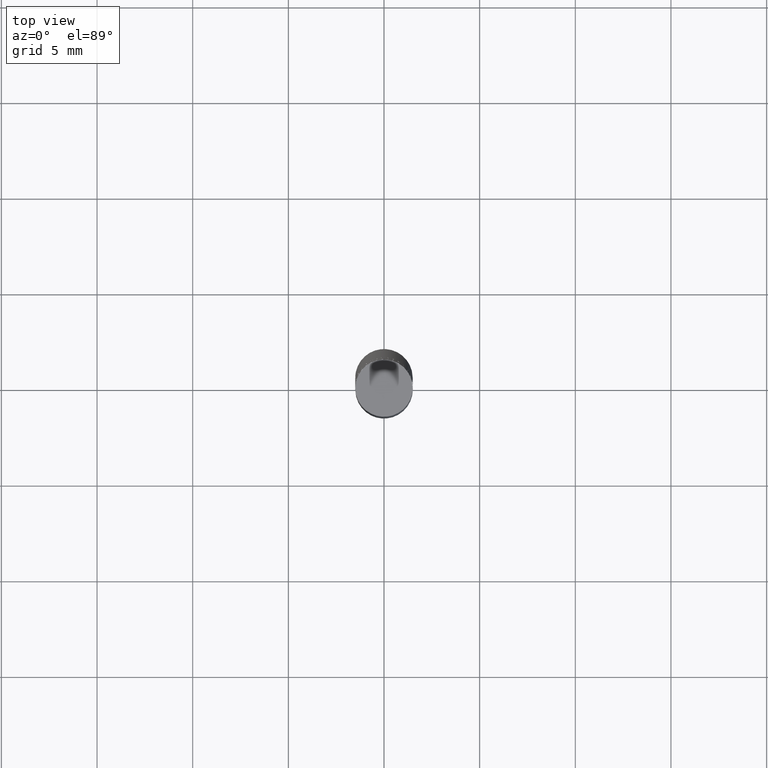
[diagram: clean part render]
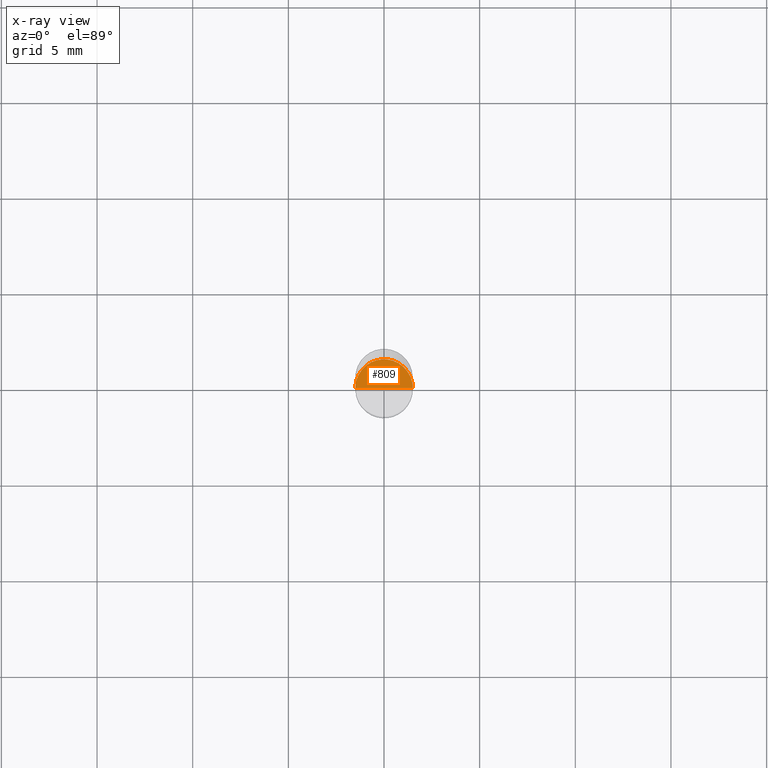
[diagram: x-ray — body ghosted, one internal face saturated and labeled with its STEP entity id]
A machine part, top view, then the same camera in x-ray: the body is ghosted and one INTERNAL B-rep face — a face not visible from any outside direction — is saturated and labeled: STEP entity #809.
In plain terms, the highlighted face is a freeform B-spline surface patch.
Its self-contained STEP definition (entity closure, byte-faithful):
#711=CARTESIAN_POINT('',(1.5,0.0,-5.0));
#712=CARTESIAN_POINT('',(1.5,1.5,-5.0));
#713=CARTESIAN_POINT('',(0.0,1.5,-5.0));
#714=CARTESIAN_POINT('',(-1.5,1.5,-5.0));
#715=CARTESIAN_POINT('',(-1.5,0.0,-5.0));
#716=CARTESIAN_POINT('',(0.0,0.0,-5.0));
#794=(
BOUNDED_SURFACE()
B_SPLINE_SURFACE(1,2,(
(#711,#712,#713,#714,#715),
(#716,#716,#716,#716,#716)
), .UNSPECIFIED.,.F.,.F.,.F.)
B_SPLINE_SURFACE_WITH_KNOTS((2,2),(3,2,3),(
0.0,1.0),(
0.0,0.5,1.0), .UNSPECIFIED.)
GEOMETRIC_REPRESENTATION_ITEM()
RATIONAL_B_SPLINE_SURFACE(((1.0,0.707106781187,1.0,0.707106781187,1.0),
(1.0,0.707106781187,1.0,0.707106781187,1.0)
))
REPRESENTATION_ITEM('')
SURFACE()
);
#795=(
BOUNDED_CURVE()
B_SPLINE_CURVE(2,(#715,#714,#713,#712,#711),.UNSPECIFIED.,.F.,.F.)
B_SPLINE_CURVE_WITH_KNOTS((3,2,3),
(0.0,0.5,1.0),.UNSPECIFIED.)
CURVE()
GEOMETRIC_REPRESENTATION_ITEM()
RATIONAL_B_SPLINE_CURVE((1.0,0.707106781187,1.0,0.707106781187,1.0))
REPRESENTATION_ITEM('')
);
#796=(
BOUNDED_CURVE()
B_SPLINE_CURVE(1,(#711,#716),.UNSPECIFIED.,.F.,.F.)
B_SPLINE_CURVE_WITH_KNOTS((2,2),
(0.0,1.0),.UNSPECIFIED.)
CURVE()
GEOMETRIC_REPRESENTATION_ITEM()
RATIONAL_B_SPLINE_CURVE((1.0,1.0))
REPRESENTATION_ITEM('')
);
#797=(
BOUNDED_CURVE()
B_SPLINE_CURVE(1,(#716,#715),.UNSPECIFIED.,.F.,.F.)
B_SPLINE_CURVE_WITH_KNOTS((2,2),
(0.0,1.0),.UNSPECIFIED.)
CURVE()
GEOMETRIC_REPRESENTATION_ITEM()
RATIONAL_B_SPLINE_CURVE((1.0,1.0))
REPRESENTATION_ITEM('')
);
#798=VERTEX_POINT('',#711);
#799=VERTEX_POINT('',#715);
#800=VERTEX_POINT('',#716);
#801=EDGE_CURVE('',#799,#798,#795,.T.);
#802=EDGE_CURVE('',#798,#800,#796,.T.);
#803=EDGE_CURVE('',#800,#799,#797,.T.);
#804=ORIENTED_EDGE('',*,*,#801,.T.);
#805=ORIENTED_EDGE('',*,*,#802,.T.);
#806=ORIENTED_EDGE('',*,*,#803,.T.);
#807=EDGE_LOOP('',(#804,#805,#806));
#808=FACE_OUTER_BOUND('',#807,.T.);
#809=ADVANCED_FACE('',(#808),#794,.T.);